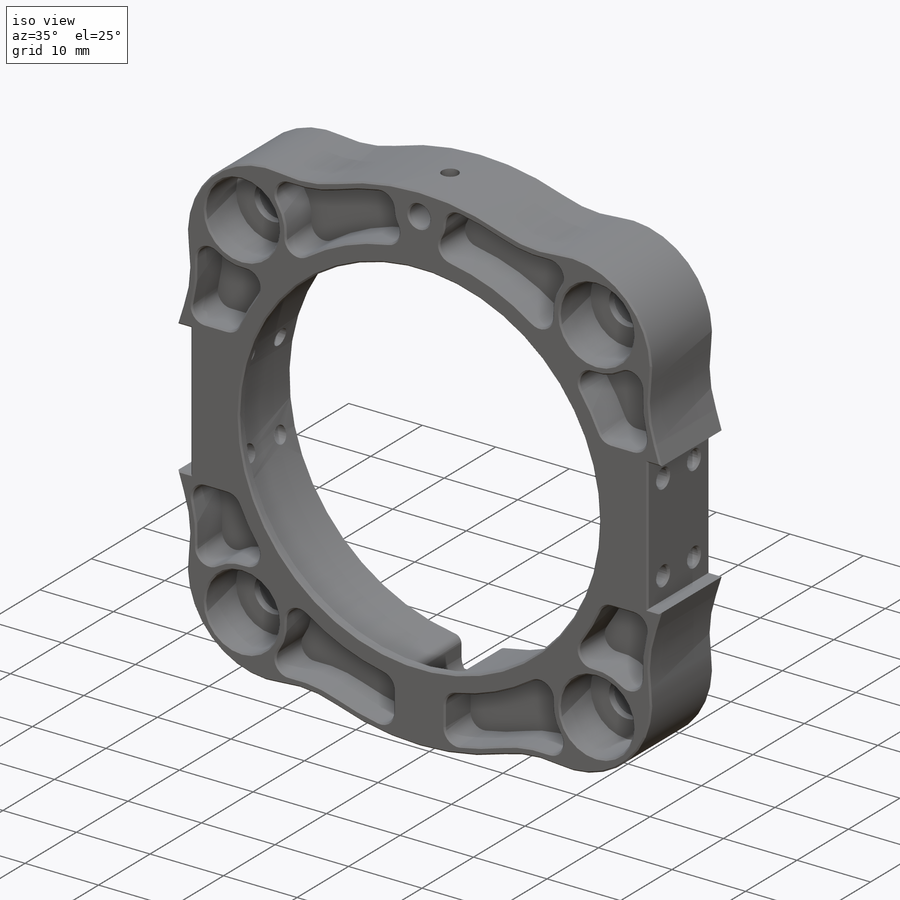
[diagram: iso view]
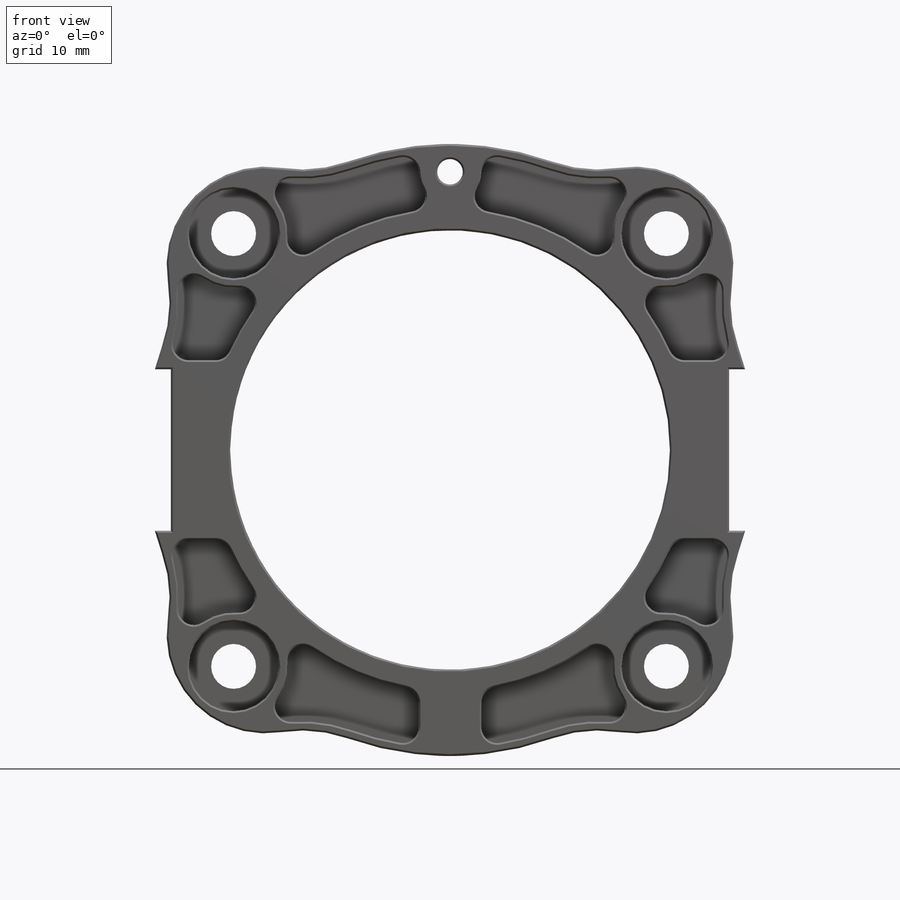
[diagram: front view]
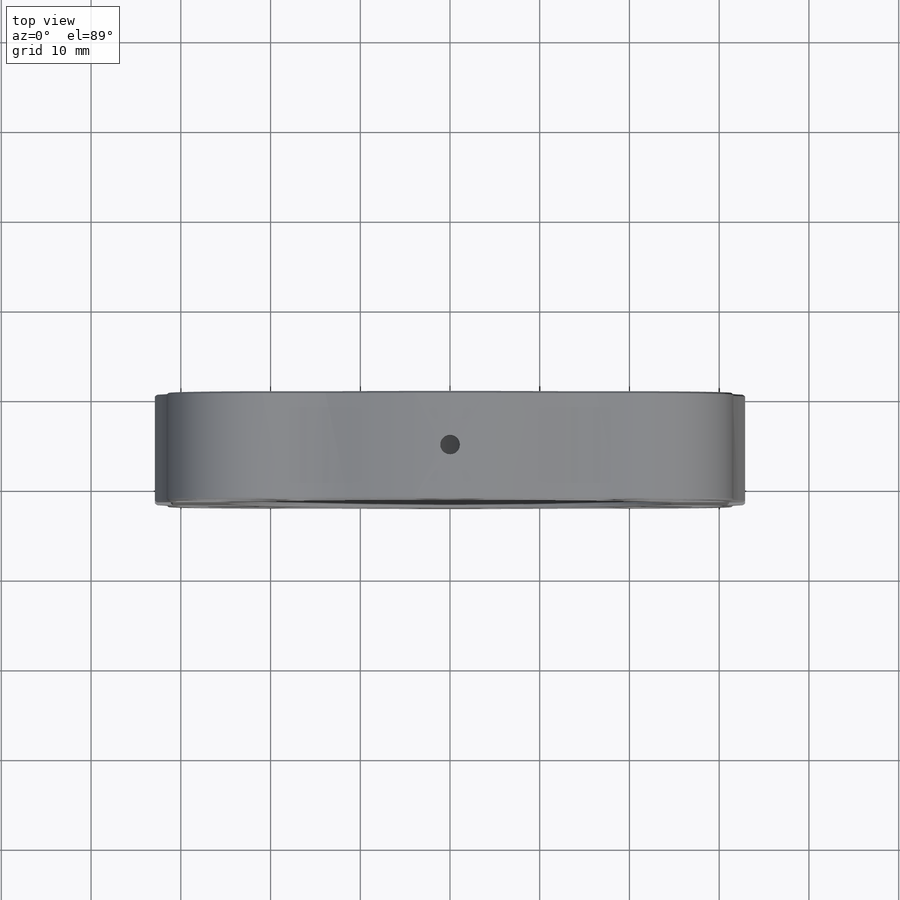
[diagram: top view]
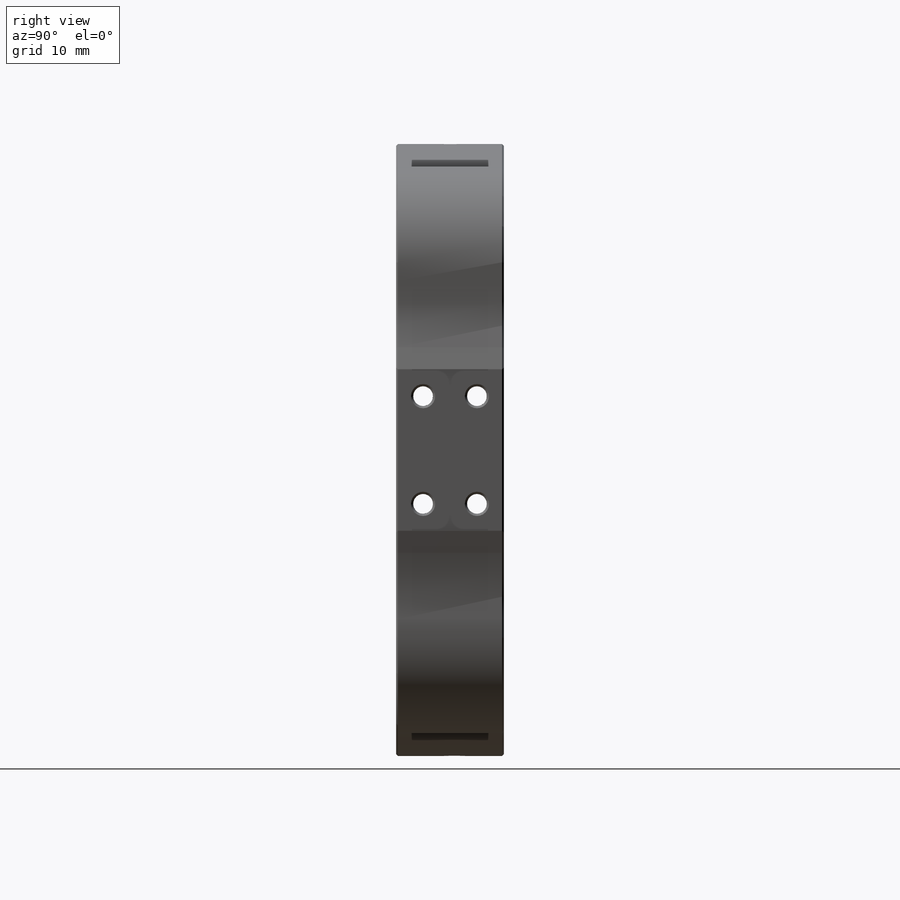
[diagram: right view]
SOLIDWORKS PART (.sldprt)
format: sldprt  version: not decoded by parser v0  size: 1,349,120 bytes
history: native  units: mm
features: sketch x17, cut_extrude x13, mirror x5, plane x3, chamfer x3, extrude x2, material x1, hole x1 (+16 scaffold rows collapsed)
feature tree (61):
  scaffold x16  (default folders/planes/origin — collapsed)
  material  "6061-T6 Al"
  sketch  "Sketch1"  dims[D1=68.2mm D8=10.0mm D9=22.0mm D10=15.0mm D2=~24.112341mm D3=~24.112341mm D4=~48.224682mm D5=~48.224682mm D6=~48.224682mm D7=~48.224682mm]
  extrude  "Extrude1"  Depth=12mm
  sketch  "Sketch2"  dims[D1=49.0mm]
  cut_extrude  "Extrude2"  [1 undecoded]
  sketch  "Sketch3"
  extrude  "Flag Stop Depth"  Depth=6mm
  sketch  "Sketch4"  dims[c1.D1=50.8mm c1.D2=~55.95128mm c2.D1=50.8mm c2.D2=2.0mm c2.D3=2.0mm c2.D4=50.8mm c3.D1=3.0mm c3.D4=5.0mm c3.D5=5.0mm c3.D6=1.0mm c4.D4=0.5mm c4.D5=28.3mm]
  cut_extrude  "Extrude4"  Depth=11mm
  sketch  "Sketch5"  dims[D1=5.0mm D2=5.0mm D3=5.0mm D4=5.0mm]
  cut_extrude  "Extrude5"  [1 undecoded]
  sketch  "Sketch6"  dims[D1=8.6mm D2=8.6mm D3=8.6mm D4=8.6mm]
  cut_extrude  "Flag Mounting Depth"  Depth=5mm
  plane  "Plane1"  Offset=31.1mm
  sketch  "Sketch7"  dims[D1=18.0mm D2=9.0mm]
  cut_extrude  "Extrude7"  [1 undecoded]
  sketch  "Sketch8"  dims[c1.D1=2.2mm c1.D2=2.5mm c1.D3=2.5mm c1.D4=2.5mm c1.D5=2.5mm c1.D6=2.5mm c1.D7=2.5mm c1.D9=2.5mm c2.D2=6.0mm c2.D3=6.0mm c2.D4=3.0mm c2.D5=3.0mm c2.D6=12.0mm c2.D7=3.0mm c2.D8=3.0mm c2.D9=12.0mm]
  cut_extrude  "Extrude8"  Depth=17mm
  chamfer  "Chamfer1"  Distance=0.25mm Angle=45deg
  mirror  "Mirror1"
  sketch  "Sketch9"  dims[c1.D1=~4.770765mm c1.D2=2.8448mm c2.D1=31.0mm]
  cut_extrude  "Extrude9"  [1 undecoded]
  sketch  "Sketch10"  dims[D1=2.5mm]
  cut_extrude  "Extrude10"  [1 undecoded]
  sketch  "Sketch11"  dims[D1=2.8448mm D2=5.5mm]
  cut_extrude  "Extrude11"  Depth=43mm
  sketch  "Sketch12"  dims[c1.D1=34.1mm c1.D2=~54.056159mm c1.D3=7.0mm c1.D4=12.0mm c1.D5=11.0mm c1.D6=1.5mm c1.D7=3.0mm c1.D8=3.0mm c1.D9=3.0mm c2.D1=~54.063743mm c2.D2=3.5mm c3.D1=1.0mm c3.D2=1.0mm c3.D5=1.0mm c4.D1=1.0mm]
  plane  "Plane2"  Offset=6mm
  sketch  "Sketch13"  dims[c1.D1=3.0mm c1.D2=3.0mm c1.D4=3.0mm c1.D3=1.5mm c2.D1=3.5mm c2.D2=1.75mm c2.D3=1.75mm c3.D1=3.5mm c3.D2=16.5mm c3.D3=27.4mm c3.D4=1.75mm c4.D1=3.5mm c4.D2=3.5mm c4.D3=27.9mm c4.D4=27.4mm c5.D3=3.5mm c5.D4=~2.55513mm c5.D5=~1.749998mm c5.D6=~0.883807mm c5.D7=~6.730236mm c6.D3=0.5mm c6.D4=0.5mm c6.D8=0.5mm c6.D9=0.5mm c6.D2=1.0mm c7.D3=0.5mm]
  sketch  "Sketch14"  dims[c1.D1=1.5mm c1.D2=3.0mm c1.D3=3.0mm c1.D4=3.0mm c1.D5=3.0mm c2.D3=1.75mm c2.D4=1.75mm c2.D5=3.5mm c2.D1=3.0mm c2.D2=3.0mm c3.D1=3.5mm c3.D2=3.5mm]
  cut_extrude  "Extrude12"  Depth=5mm
  cut_extrude  "Extrude13"  Depth=5mm
  cut_extrude  "Extrude14"  Depth=5mm
  mirror  "Mirror2"
  mirror  "Mirror6"
  mirror  "Mirror7"
  mirror  "Mirror8"
  sketch  "Sketch15"  dims[D1=~2.496778mm]
  cut_extrude  "Extrude15"  Depth=8mm
  chamfer  "Chamfer2"  Distance=0.2mm Angle=45deg
  chamfer  "Chamfer3"  Distance=0.2mm Angle=45deg
  hole  "#2-56 Tapped Hole1"  Diameter=1.778mm Depth=3.1mm
  sketch  "3DSketch1"  dims[D1=6.0mm]
  sketch  "Sketch16"  dims[hole-wizard template sketch: 29 standard entries collapsed; hole parameters kept: c8.Tap Drill Depth=3.1mm c8.Thread Major Dia.=2.1844mm c8.Thread Depth=3.0mm c8.D5=~14.816244mm c8.Drill Angle=118.0deg]
  plane  "Plane3"
decode coverage: 30 of 41 modeling features carry decoded parameters
note: ~ marks probable driven/reference dimensions
note: 5 parameter values undecoded
summary: no parameter record found for 5 features
note: suppression state not decoded; provenance and decode notes live in map.json
